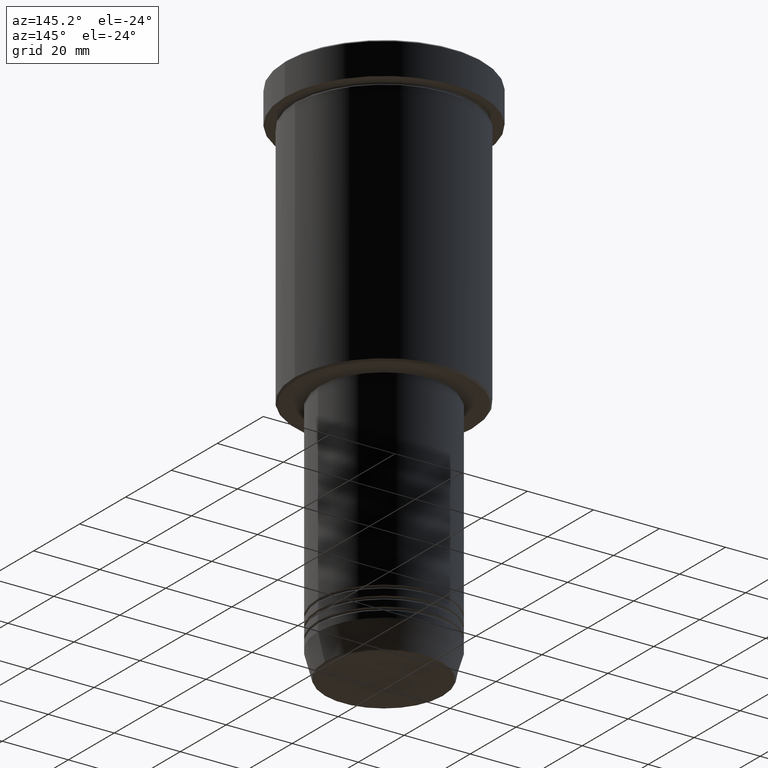
[diagram: clean part render]
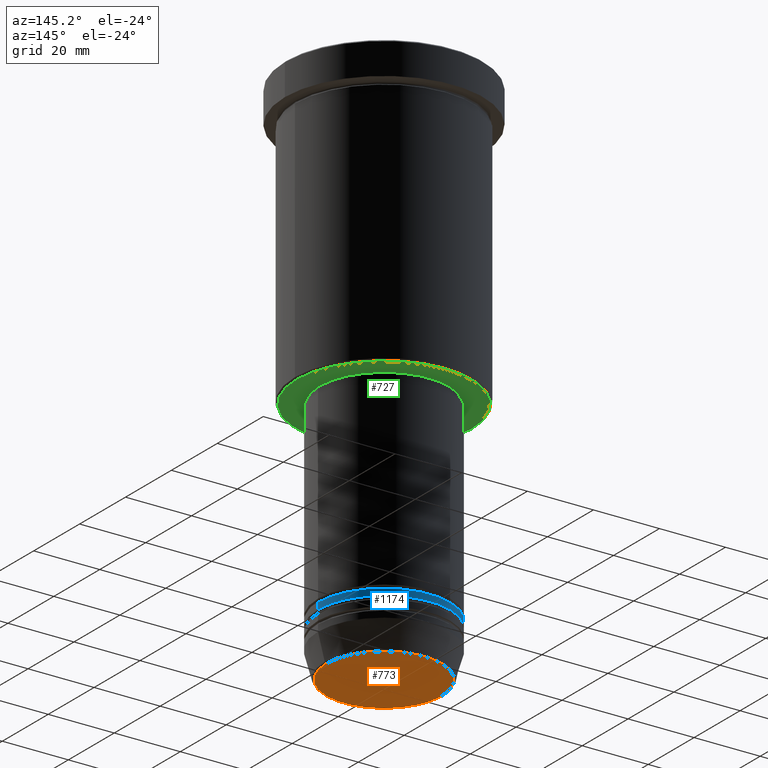
[diagram: same view with three faces highlighted in distinct colors, each labeled with its STEP entity id]
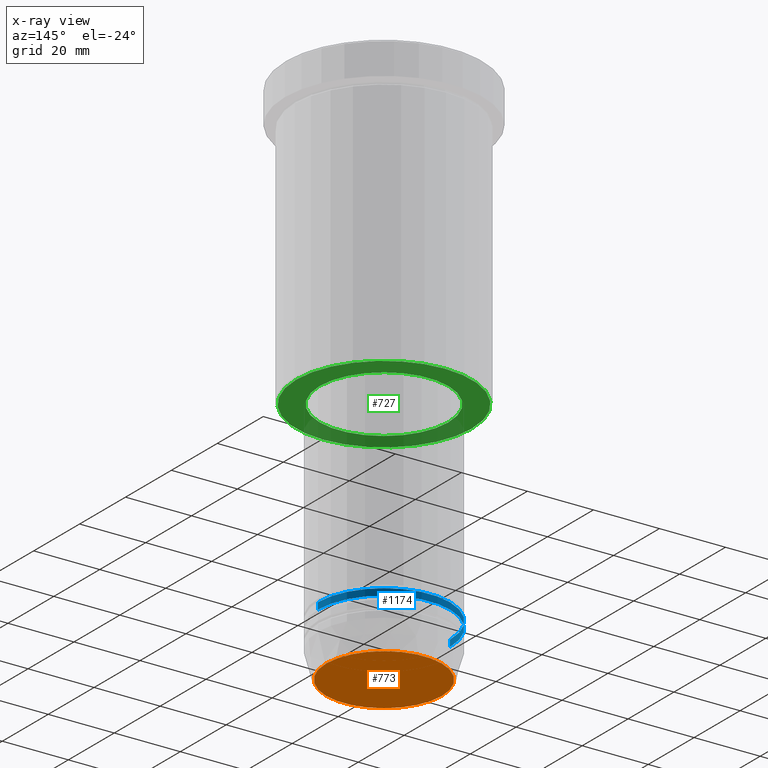
[diagram: x-ray of the same camera — body ghosted, the three highlighted faces saturated]
A machine part, auxiliary view with three faces highlighted in distinct colors.
The next image is the same camera in x-ray (body ghosted, the three faces saturated) — at least one of them is partly hidden behind the body in this view.
Their STEP definitions:

[orange] entity #773 — the highlighted planar face has unit normal (0, -0, 1).
#127 = DIRECTION ( 'NONE',  ( 1.000000000000000000, 0.000000000000000000, 0.000000000000000000 ) ) ;
#248 = AXIS2_PLACEMENT_3D ( 'NONE', #686, #1144, #127 ) ;
#289 = CARTESIAN_POINT ( 'NONE',  ( 0.000000000000000000, 0.000000000000000000, -160.9999999999999716 ) ) ;
#336 = ORIENTED_EDGE ( 'NONE', *, *, #625, .T. ) ;
#370 = CARTESIAN_POINT ( 'NONE',  ( -17.47274296656154036, 2.169366823916868503E-15, -160.9999999999999716 ) ) ;
#414 = VERTEX_POINT ( 'NONE', #1028 ) ;
#484 = DIRECTION ( 'NONE',  ( 0.000000000000000000, -0.000000000000000000, 1.000000000000000000 ) ) ;
#487 = CIRCLE ( 'NONE', #1159, 17.47274296656154036 ) ;
#505 = CIRCLE ( 'NONE', #248, 17.47274296656154036 ) ;
#624 = ORIENTED_EDGE ( 'NONE', *, *, #1038, .T. ) ;
#625 = EDGE_CURVE ( 'NONE', #982, #414, #487, .T. ) ;
#686 = CARTESIAN_POINT ( 'NONE',  ( 0.000000000000000000, 0.000000000000000000, -160.9999999999999716 ) ) ;
#739 = CARTESIAN_POINT ( 'NONE',  ( 0.000000000000000000, 0.000000000000000000, -160.9999999999999716 ) ) ;
#773 = ADVANCED_FACE ( 'NONE', ( #1099 ), #852, .F. ) ;
#842 = EDGE_LOOP ( 'NONE', ( #624, #336 ) ) ;
#852 = PLANE ( 'NONE',  #1069 ) ;
#952 = DIRECTION ( 'NONE',  ( 1.000000000000000000, 0.000000000000000000, 0.000000000000000000 ) ) ;
#982 = VERTEX_POINT ( 'NONE', #370 ) ;
#1028 = CARTESIAN_POINT ( 'NONE',  ( 17.47274296656154036, 0.000000000000000000, -160.9999999999999716 ) ) ;
#1038 = EDGE_CURVE ( 'NONE', #414, #982, #505, .T. ) ;
#1069 = AXIS2_PLACEMENT_3D ( 'NONE', #739, #484, #952 ) ;
#1099 = FACE_OUTER_BOUND ( 'NONE', #842, .T. ) ;
#1121 = DIRECTION ( 'NONE',  ( 1.000000000000000000, 0.000000000000000000, 0.000000000000000000 ) ) ;
#1126 = DIRECTION ( 'NONE',  ( 0.000000000000000000, 0.000000000000000000, -1.000000000000000000 ) ) ;
#1144 = DIRECTION ( 'NONE',  ( 0.000000000000000000, 0.000000000000000000, -1.000000000000000000 ) ) ;
#1159 = AXIS2_PLACEMENT_3D ( 'NONE', #289, #1126, #1121 ) ;

[blue] entity #1174 — the highlighted cylindrical surface (partial cylindrical patch) has radius 20 mm, axis along (-0, -0, 1).
#10 = DIRECTION ( 'NONE',  ( 1.000000000000000000, 0.000000000000000000, 0.000000000000000000 ) ) ;
#14 = LINE ( 'NONE', #765, #993 ) ;
#16 = AXIS2_PLACEMENT_3D ( 'NONE', #866, #944, #848 ) ;
#63 = VERTEX_POINT ( 'NONE', #667 ) ;
#77 = CARTESIAN_POINT ( 'NONE',  ( 20.00000000000000000, 0.000000000000000000, -146.9999999999999716 ) ) ;
#91 = CARTESIAN_POINT ( 'NONE',  ( 0.000000000000000000, 0.000000000000000000, -146.9999999999999716 ) ) ;
#115 = EDGE_CURVE ( 'NONE', #135, #63, #14, .T. ) ;
#135 = VERTEX_POINT ( 'NONE', #988 ) ;
#153 = CIRCLE ( 'NONE', #811, 20.00000000000000000 ) ;
#156 = DIRECTION ( 'NONE',  ( 1.000000000000000000, 0.000000000000000000, 0.000000000000000000 ) ) ;
#166 = CARTESIAN_POINT ( 'NONE',  ( 20.00000000000000000, 0.000000000000000000, 0.000000000000000000 ) ) ;
#226 = EDGE_CURVE ( 'NONE', #872, #332, #721, .T. ) ;
#240 = DIRECTION ( 'NONE',  ( -0.000000000000000000, -0.000000000000000000, 1.000000000000000000 ) ) ;
#305 = ORIENTED_EDGE ( 'NONE', *, *, #975, .T. ) ;
#330 = ORIENTED_EDGE ( 'NONE', *, *, #115, .T. ) ;
#332 = VERTEX_POINT ( 'NONE', #851 ) ;
#334 = CARTESIAN_POINT ( 'NONE',  ( 0.000000000000000000, 0.000000000000000000, -144.9999999999999716 ) ) ;
#481 = FACE_OUTER_BOUND ( 'NONE', #1073, .T. ) ;
#495 = ORIENTED_EDGE ( 'NONE', *, *, #816, .F. ) ;
#532 = DIRECTION ( 'NONE',  ( -0.000000000000000000, -0.000000000000000000, 1.000000000000000000 ) ) ;
#667 = CARTESIAN_POINT ( 'NONE',  ( -20.00000000000000000, 2.449293598294706513E-15, -144.9999999999999716 ) ) ;
#721 = LINE ( 'NONE', #166, #1143 ) ;
#747 = CYLINDRICAL_SURFACE ( 'NONE', #16, 20.00000000000000000 ) ;
#765 = CARTESIAN_POINT ( 'NONE',  ( -20.00000000000000000, 2.449293598294706513E-15, 0.000000000000000000 ) ) ;
#811 = AXIS2_PLACEMENT_3D ( 'NONE', #334, #240, #156 ) ;
#816 = EDGE_CURVE ( 'NONE', #332, #63, #153, .T. ) ;
#837 = DIRECTION ( 'NONE',  ( -0.000000000000000000, -0.000000000000000000, 1.000000000000000000 ) ) ;
#848 = DIRECTION ( 'NONE',  ( 1.000000000000000000, 0.000000000000000000, 0.000000000000000000 ) ) ;
#851 = CARTESIAN_POINT ( 'NONE',  ( 20.00000000000000000, 0.000000000000000000, -144.9999999999999716 ) ) ;
#854 = DIRECTION ( 'NONE',  ( -0.000000000000000000, -0.000000000000000000, 1.000000000000000000 ) ) ;
#866 = CARTESIAN_POINT ( 'NONE',  ( 0.000000000000000000, 0.000000000000000000, 0.000000000000000000 ) ) ;
#872 = VERTEX_POINT ( 'NONE', #77 ) ;
#944 = DIRECTION ( 'NONE',  ( -0.000000000000000000, -0.000000000000000000, 1.000000000000000000 ) ) ;
#959 = AXIS2_PLACEMENT_3D ( 'NONE', #91, #837, #10 ) ;
#964 = ORIENTED_EDGE ( 'NONE', *, *, #226, .F. ) ;
#975 = EDGE_CURVE ( 'NONE', #872, #135, #1145, .T. ) ;
#988 = CARTESIAN_POINT ( 'NONE',  ( -20.00000000000000000, 2.449293598294706513E-15, -146.9999999999999716 ) ) ;
#993 = VECTOR ( 'NONE', #854, 1000.000000000000000 ) ;
#1073 = EDGE_LOOP ( 'NONE', ( #305, #330, #495, #964 ) ) ;
#1143 = VECTOR ( 'NONE', #532, 1000.000000000000000 ) ;
#1145 = CIRCLE ( 'NONE', #959, 20.00000000000000000 ) ;
#1174 = ADVANCED_FACE ( 'NONE', ( #481 ), #747, .T. ) ;

[green] entity #727 — the highlighted planar face has unit normal (0, 0, -1).
#53 = DIRECTION ( 'NONE',  ( -1.000000000000000000, 0.000000000000000000, -0.000000000000000000 ) ) ;
#102 = DIRECTION ( 'NONE',  ( -0.000000000000000000, -0.000000000000000000, 1.000000000000000000 ) ) ;
#132 = AXIS2_PLACEMENT_3D ( 'NONE', #374, #102, #743 ) ;
#145 = VERTEX_POINT ( 'NONE', #611 ) ;
#157 = PLANE ( 'NONE',  #566 ) ;
#208 = DIRECTION ( 'NONE',  ( -1.000000000000000000, 0.000000000000000000, 0.000000000000000000 ) ) ;
#238 = FACE_OUTER_BOUND ( 'NONE', #937, .T. ) ;
#241 = DIRECTION ( 'NONE',  ( 0.000000000000000000, 0.000000000000000000, -1.000000000000000000 ) ) ;
#269 = VERTEX_POINT ( 'NONE', #1179 ) ;
#344 = VERTEX_POINT ( 'NONE', #1021 ) ;
#374 = CARTESIAN_POINT ( 'NONE',  ( 0.000000000000000000, 0.000000000000000000, -86.00000000000000000 ) ) ;
#394 = CARTESIAN_POINT ( 'NONE',  ( 0.000000000000000000, 0.000000000000000000, -86.00000000000000000 ) ) ;
#402 = ORIENTED_EDGE ( 'NONE', *, *, #417, .T. ) ;
#411 = AXIS2_PLACEMENT_3D ( 'NONE', #394, #556, #827 ) ;
#417 = EDGE_CURVE ( 'NONE', #344, #145, #617, .T. ) ;
#465 = DIRECTION ( 'NONE',  ( 0.000000000000000000, 0.000000000000000000, -1.000000000000000000 ) ) ;
#469 = ORIENTED_EDGE ( 'NONE', *, *, #965, .T. ) ;
#477 = DIRECTION ( 'NONE',  ( 1.000000000000000000, 0.000000000000000000, 0.000000000000000000 ) ) ;
#556 = DIRECTION ( 'NONE',  ( 0.000000000000000000, 0.000000000000000000, -1.000000000000000000 ) ) ;
#566 = AXIS2_PLACEMENT_3D ( 'NONE', #973, #241, #53 ) ;
#601 = FACE_BOUND ( 'NONE', #807, .T. ) ;
#604 = CIRCLE ( 'NONE', #1111, 26.49999999999996803 ) ;
#611 = CARTESIAN_POINT ( 'NONE',  ( 19.50000000000000000, 0.000000000000000000, -86.00000000000000000 ) ) ;
#617 = CIRCLE ( 'NONE', #132, 19.50000000000000000 ) ;
#649 = CARTESIAN_POINT ( 'NONE',  ( 0.000000000000000000, 0.000000000000000000, -86.00000000000000000 ) ) ;
#656 = EDGE_CURVE ( 'NONE', #886, #269, #604, .T. ) ;
#727 = ADVANCED_FACE ( 'NONE', ( #238, #601 ), #157, .T. ) ;
#735 = CIRCLE ( 'NONE', #958, 19.50000000000000000 ) ;
#743 = DIRECTION ( 'NONE',  ( 1.000000000000000000, 0.000000000000000000, 0.000000000000000000 ) ) ;
#807 = EDGE_LOOP ( 'NONE', ( #469, #402 ) ) ;
#827 = DIRECTION ( 'NONE',  ( -1.000000000000000000, 0.000000000000000000, 0.000000000000000000 ) ) ;
#886 = VERTEX_POINT ( 'NONE', #1181 ) ;
#918 = DIRECTION ( 'NONE',  ( -0.000000000000000000, -0.000000000000000000, 1.000000000000000000 ) ) ;
#937 = EDGE_LOOP ( 'NONE', ( #1180, #1031 ) ) ;
#958 = AXIS2_PLACEMENT_3D ( 'NONE', #649, #918, #477 ) ;
#965 = EDGE_CURVE ( 'NONE', #145, #344, #735, .T. ) ;
#970 = EDGE_CURVE ( 'NONE', #269, #886, #1160, .T. ) ;
#973 = CARTESIAN_POINT ( 'NONE',  ( 0.000000000000000000, 27.00000000000000355, -86.00000000000000000 ) ) ;
#1021 = CARTESIAN_POINT ( 'NONE',  ( -19.50000000000000000, 2.388061258337338939E-15, -86.00000000000000000 ) ) ;
#1024 = CARTESIAN_POINT ( 'NONE',  ( 0.000000000000000000, 0.000000000000000000, -86.00000000000000000 ) ) ;
#1031 = ORIENTED_EDGE ( 'NONE', *, *, #970, .T. ) ;
#1111 = AXIS2_PLACEMENT_3D ( 'NONE', #1024, #465, #208 ) ;
#1160 = CIRCLE ( 'NONE', #411, 26.49999999999996803 ) ;
#1179 = CARTESIAN_POINT ( 'NONE',  ( -26.49999999999996803, 3.275930187719167974E-15, -86.00000000000000000 ) ) ;
#1180 = ORIENTED_EDGE ( 'NONE', *, *, #656, .T. ) ;
#1181 = CARTESIAN_POINT ( 'NONE',  ( 26.49999999999996803, 0.000000000000000000, -86.00000000000000000 ) ) ;